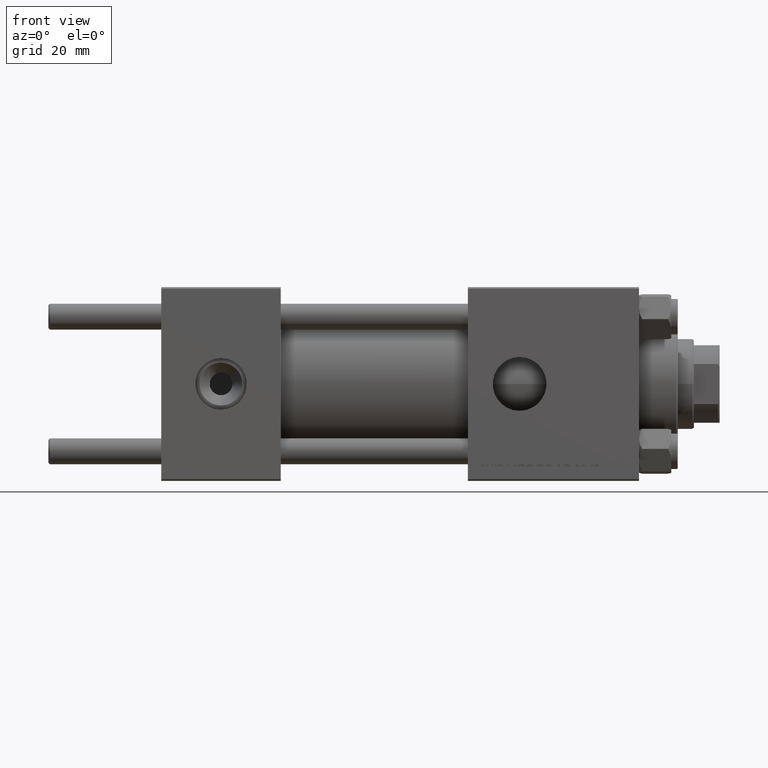
[diagram: clean part render]
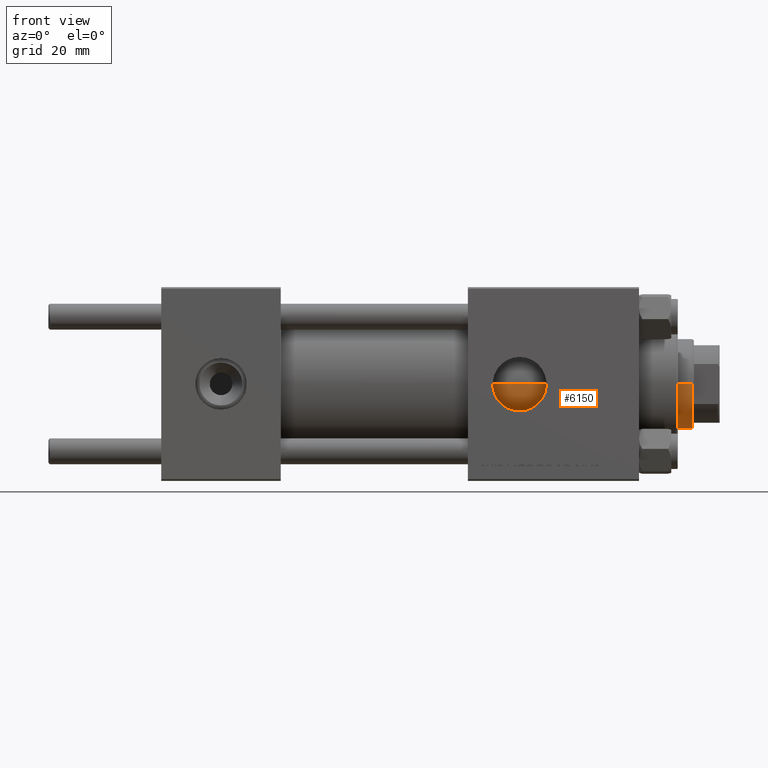
[diagram: same view with one face highlighted and labeled with its STEP entity id]
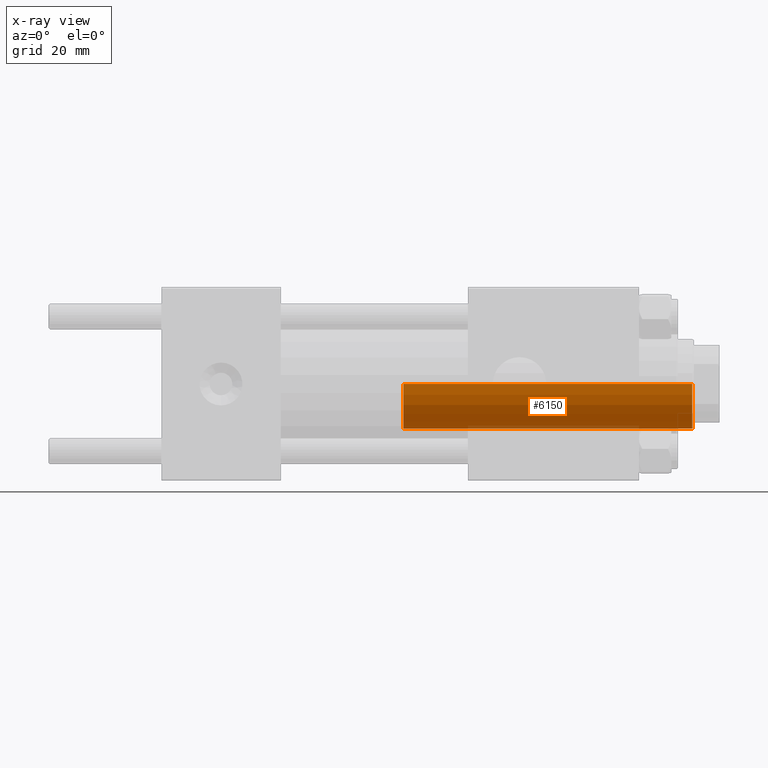
[diagram: x-ray of the same camera — body ghosted, the highlighted face saturated]
A machine part, front view. The second image highlights one B-rep face of the part: STEP entity #6150.
The next image is the same camera in x-ray: the body ghosted, the highlighted face saturated — about 4% of this face is hidden behind the body in this view.
In plain terms, the highlighted cylindrical surface (partial cylindrical patch) has radius 14 mm, axis along (-1, 0, 0).
Its self-contained STEP definition (entity closure, byte-faithful):
#2271 = AXIS2_PLACEMENT_3D ( 'NONE', #38983, #22899, #6827 ) ;
#2835 = DIRECTION ( 'NONE',  ( -1.000000000000000000, 0.000000000000000000, 0.000000000000000000 ) ) ;
#6150 = ADVANCED_FACE ( 'NONE', ( #51613 ), #27334, .T. ) ;
#6827 = DIRECTION ( 'NONE',  ( 1.000000000000000000, 0.000000000000000000, 0.000000000000000000 ) ) ;
#8753 = DIRECTION ( 'NONE',  ( 0.000000000000000000, 0.000000000000000000, 1.000000000000000000 ) ) ;
#9386 = DIRECTION ( 'NONE',  ( -0.000000000000000000, -0.000000000000000000, -1.000000000000000000 ) ) ;
#20241 = CIRCLE ( 'NONE', #37085, 14.00000000000000178 ) ;
#20994 = CARTESIAN_POINT ( 'NONE',  ( -14.00000000000000178, 0.000000000000000000, 128.0000000000000000 ) ) ;
#21167 = EDGE_CURVE ( 'NONE', #51483, #32747, #26567, .T. ) ;
#22877 = CARTESIAN_POINT ( 'NONE',  ( 0.000000000000000000, 0.000000000000000000, 128.0000000000000000 ) ) ;
#22899 = DIRECTION ( 'NONE',  ( 0.000000000000000000, 0.000000000000000000, -1.000000000000000000 ) ) ;
#24829 = DIRECTION ( 'NONE',  ( 1.000000000000000000, 0.000000000000000000, 0.000000000000000000 ) ) ;
#26343 = ORIENTED_EDGE ( 'NONE', *, *, #21167, .T. ) ;
#26567 = CIRCLE ( 'NONE', #2271, 14.00000000000000178 ) ;
#26687 = LINE ( 'NONE', #20994, #43850 ) ;
#27334 = CYLINDRICAL_SURFACE ( 'NONE', #42062, 14.00000000000000178 ) ;
#28519 = CARTESIAN_POINT ( 'NONE',  ( 0.000000000000000000, 0.000000000000000000, 38.00000000000000000 ) ) ;
#30878 = VECTOR ( 'NONE', #48716, 1000.000000000000000 ) ;
#31142 = ORIENTED_EDGE ( 'NONE', *, *, #51907, .T. ) ;
#31363 = VERTEX_POINT ( 'NONE', #36896 ) ;
#32617 = CARTESIAN_POINT ( 'NONE',  ( 14.00000000000000178, 1.714505518806294441E-15, 128.0000000000000000 ) ) ;
#32747 = VERTEX_POINT ( 'NONE', #47602 ) ;
#33157 = EDGE_CURVE ( 'NONE', #50493, #31363, #20241, .T. ) ;
#34062 = EDGE_CURVE ( 'NONE', #51483, #31363, #26687, .T. ) ;
#34392 = CARTESIAN_POINT ( 'NONE',  ( -14.00000000000000178, 0.000000000000000000, 127.5000000000000853 ) ) ;
#34859 = ORIENTED_EDGE ( 'NONE', *, *, #34062, .F. ) ;
#36896 = CARTESIAN_POINT ( 'NONE',  ( -14.00000000000000178, 0.000000000000000000, 38.00000000000000000 ) ) ;
#37085 = AXIS2_PLACEMENT_3D ( 'NONE', #28519, #8753, #24829 ) ;
#38983 = CARTESIAN_POINT ( 'NONE',  ( 0.000000000000000000, 0.000000000000000000, 127.5000000000000853 ) ) ;
#39475 = DIRECTION ( 'NONE',  ( -0.000000000000000000, -0.000000000000000000, -1.000000000000000000 ) ) ;
#40002 = LINE ( 'NONE', #32617, #30878 ) ;
#42062 = AXIS2_PLACEMENT_3D ( 'NONE', #22877, #39475, #2835 ) ;
#42750 = ORIENTED_EDGE ( 'NONE', *, *, #33157, .T. ) ;
#43850 = VECTOR ( 'NONE', #9386, 1000.000000000000000 ) ;
#44708 = EDGE_LOOP ( 'NONE', ( #26343, #31142, #42750, #34859 ) ) ;
#46205 = CARTESIAN_POINT ( 'NONE',  ( 14.00000000000000178, 1.714505518806294441E-15, 38.00000000000000000 ) ) ;
#47602 = CARTESIAN_POINT ( 'NONE',  ( 14.00000000000000178, 1.714505518806294441E-15, 127.5000000000000853 ) ) ;
#48716 = DIRECTION ( 'NONE',  ( -0.000000000000000000, -0.000000000000000000, -1.000000000000000000 ) ) ;
#50493 = VERTEX_POINT ( 'NONE', #46205 ) ;
#51483 = VERTEX_POINT ( 'NONE', #34392 ) ;
#51613 = FACE_OUTER_BOUND ( 'NONE', #44708, .T. ) ;
#51907 = EDGE_CURVE ( 'NONE', #32747, #50493, #40002, .T. ) ;